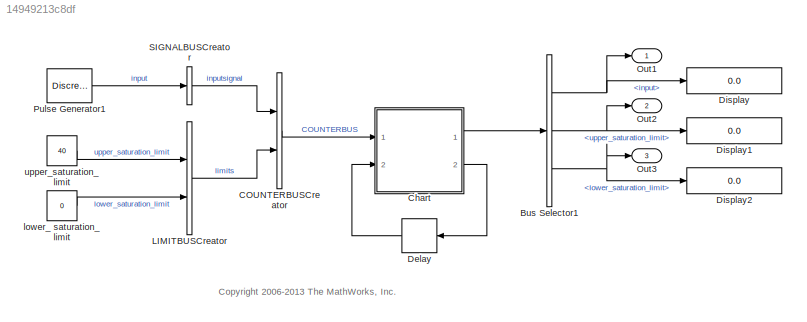
MODEL slx_14949213c8df
KIND model
CONFIG AbsTol = auto
CONFIG EnableMultiTasking = on
CONFIG FixedStep = auto
CONFIG MaxStep = auto
CONFIG MinStep = auto
CONFIG PreLoadFcn = load bus_objects;
CONFIG RelTol = 1e-3
CONFIG SampleTimeConstraint = Unconstrained
CONFIG Solver = FixedStepDiscrete
CONFIG SolverName = FixedStepDiscrete
CONFIG StartTime = 0.0
CONFIG StopTime = 10
BLOCK [BusSelector] Bus Selector1
  OutputAsBus = off
  OutputSignals = inputsignal.input,limits.upper_saturation_limit,limits.lower_saturation_limit
  Ports = [1, 3]
BLOCK [BusCreator] COUNTERBUSCreator
  DisplayOption = bar
  InheritFromInputs = on
  Inputs = 2
  NonVirtualBus = on
  OutDataTypeStr = Bus: COUNTERBUS
  Ports = [2, 1]
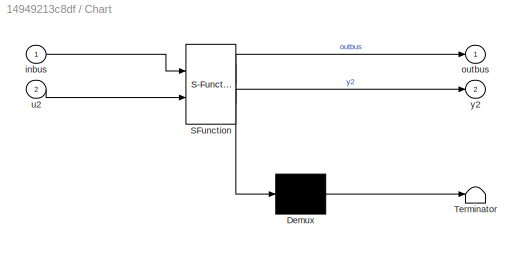
BLOCK [SubSystem] Chart
  ErrorFcn = Stateflow.Translate.translate
  PermitHierarchicalResolution = ExplicitOnly
  Ports = [2, 2]
  RequestExecContextInheritance = off
  SFBlockType = Chart
  TreatAsAtomicUnit = on
  Variant = off
BLOCK [Demux] Chart/ Demux 
  Outputs = 1
  Ports = [1, 1]
BLOCK [S-Function] Chart/ SFunction 
  EnableBusSupport = off
  FunctionName = sf_sfun
  PortCounts = [2 3]
  Ports = [2, 3]
  SFcnIsStateOwnerBlock = off
  SFunctionDeploymentMode = off
  Tag = Stateflow S-Function sfbus_demo 1
BLOCK [Terminator] Chart/ Terminator 
BLOCK [Inport] Chart/inbus
  IconDisplay = Port number
BLOCK [Outport] Chart/outbus
  IconDisplay = Port number
BLOCK [Inport] Chart/u2
  IconDisplay = Port number
  Port = 2
BLOCK [Outport] Chart/y2
  IconDisplay = Port number
  Port = 2
BLOCK [Delay] Delay
  InputPortMap = u0
  Ports = [1, 1]
BLOCK [Display] Display
  Decimation = 1
  Format = short_e
  Ports = [1]
BLOCK [Display] Display1
  Decimation = 1
  Format = short_e
  Ports = [1]
BLOCK [Display] Display2
  Decimation = 1
  Format = short_e
  Ports = [1]
BLOCK [BusCreator] LIMITBUSCreator
  DisplayOption = bar
  InheritFromInputs = on
  Inputs = 2
  NonVirtualBus = on
  OutDataTypeStr = Bus: LIMITBUS
  Ports = [2, 1]
BLOCK [Outport] Out1
  IconDisplay = Port number
BLOCK [Outport] Out2
  IconDisplay = Port number
  Port = 2
BLOCK [Outport] Out3
  IconDisplay = Port number
  Port = 3
BLOCK [DiscretePulseGenerator] Pulse Generator1
  Amplitude = int32(1)
  Ports = [0, 1]
  SampleTime = 0.1
BLOCK [BusCreator] SIGNALBUSCreator
  DisplayOption = bar
  InheritFromInputs = on
  Inputs = 1
  NonVirtualBus = on
  OutDataTypeStr = Bus: SIGNALBUS
  Ports = [1, 1]
BLOCK [Constant] lower_ saturation_ limit
  OutDataTypeStr = int32
  Value = 0
BLOCK [Constant] upper_saturation_limit
  OutDataTypeStr = int32
  Value = 40
ANNOTATION (root): <copyright redacted>
NET Bus Selector1:1 -> Display:1, Out1:1
NET Bus Selector1:2 -> Display1:1, Out2:1
NET Bus Selector1:3 -> Display2:1, Out3:1
LINE COUNTERBUSCreator:1 -> Chart:1
LINE Chart:1 -> Bus Selector1:1
LINE Chart:2 -> Delay:1
LINE Delay:1 -> Chart:2
LINE LIMITBUSCreator:1 -> COUNTERBUSCreator:2
LINE Pulse Generator1:1 -> SIGNALBUSCreator:1
LINE SIGNALBUSCreator:1 -> COUNTERBUSCreator:1
LINE lower_ saturation_ limit:1 -> LIMITBUSCreator:2
LINE upper_saturation_limit:1 -> LIMITBUSCreator:1
note: NET lines group one-source signal fan-out (src -> all destinations, sorted); 1:1 wires keep LINE
CHART Chart states=1 transitions=2
  STATE_LABEL 'y = get_input_signal(u)'
  STATE_LABEL '{ y = u.inputsignal; }'
